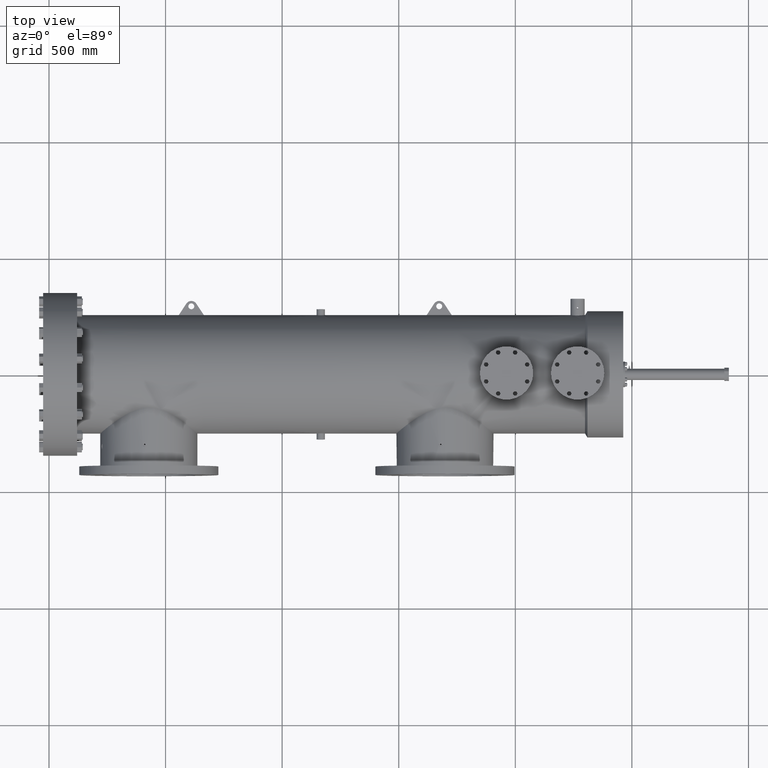
[diagram: clean part render]
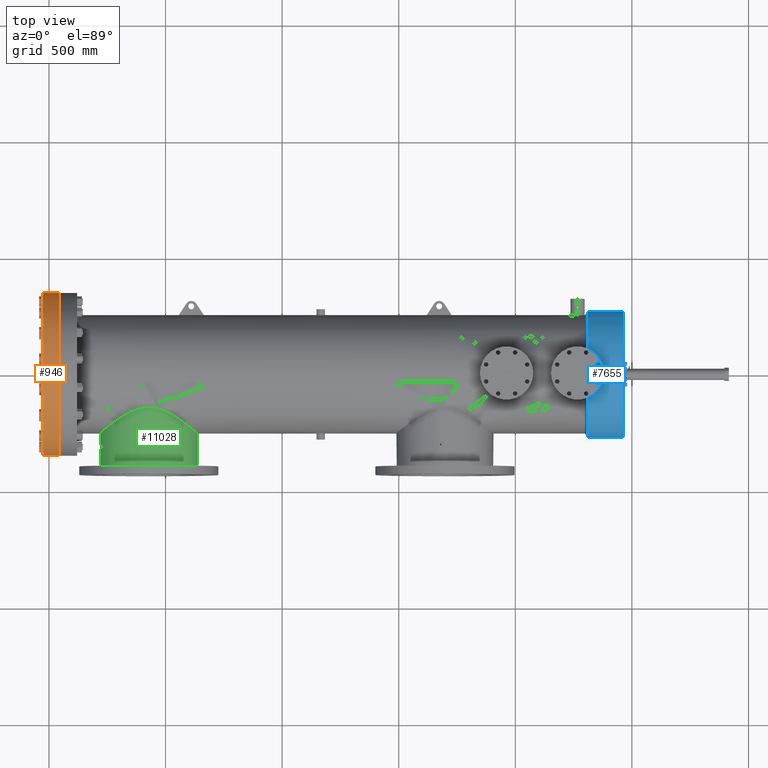
[diagram: same view with three faces highlighted in distinct colors, each labeled with its STEP entity id]
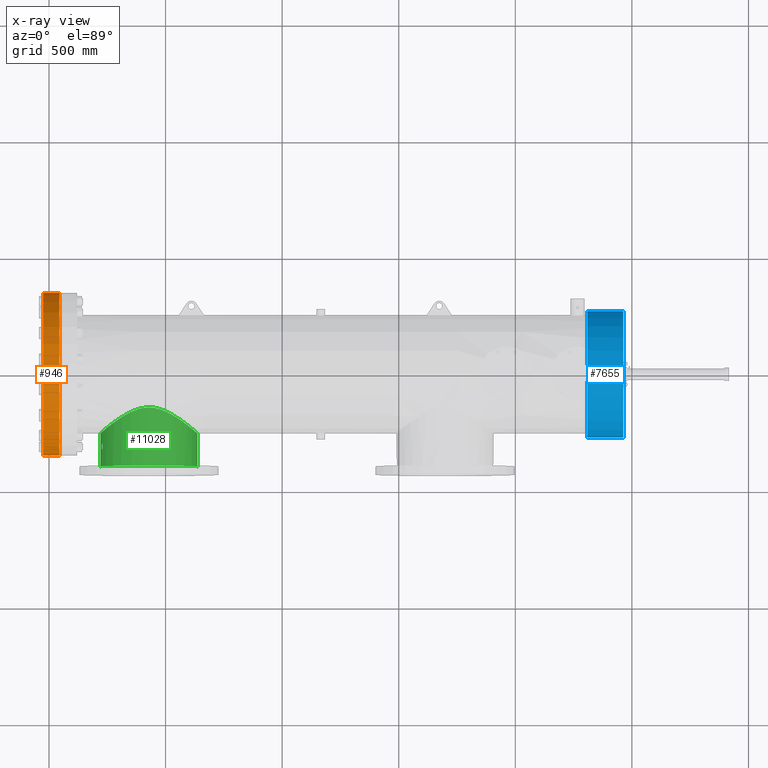
[diagram: x-ray of the same camera — body ghosted, the three highlighted faces saturated]
A machine part, top view with three faces highlighted in distinct colors.
The next image is the same camera in x-ray (body ghosted, the three faces saturated) — at least one of them is partly hidden behind the body in this view.
Their STEP definitions:

[orange] entity #946 — the highlighted cylindrical surface (partial cylindrical patch) has radius 349.227 mm, axis along (-1, -0, -0).
#865 = EDGE_LOOP ( 'NONE', ( #14180, #13440, #8347, #10938 ) ) ;
#946 = ADVANCED_FACE ( 'NONE', ( #8907 ), #1403, .T. ) ;
#1403 = CYLINDRICAL_SURFACE ( 'NONE', #9583, 13.74907756121482194 ) ;
#1550 = DIRECTION ( 'NONE',  ( -1.000000000000000000, -7.582751577510925543E-17, -0.0000000000000000000 ) ) ;
#2478 = CARTESIAN_POINT ( 'NONE',  ( 1.759999999999956044, 1.708298909375056226E-16, 0.0000000000000000000 ) ) ;
#3648 = CARTESIAN_POINT ( 'NONE',  ( -0.9900000000000012124, 13.74907756121482194, 1.683776382657042859E-15 ) ) ;
#4308 = CARTESIAN_POINT ( 'NONE',  ( -0.9899999999999978817, -13.74907756121482194, 0.0000000000000000000 ) ) ;
#4872 = DIRECTION ( 'NONE',  ( 7.947727348256769457E-17, -1.000000000000000000, 0.0000000000000000000 ) ) ;
#5819 = AXIS2_PLACEMENT_3D ( 'NONE', #2478, #22097, #4872 ) ;
#7365 = EDGE_CURVE ( 'NONE', #25760, #18599, #21138, .T. ) ;
#7508 = EDGE_CURVE ( 'NONE', #25760, #13661, #9553, .T. ) ;
#8095 = CIRCLE ( 'NONE', #8597, 13.74907756121482194 ) ;
#8347 = ORIENTED_EDGE ( 'NONE', *, *, #10806, .F. ) ;
#8597 = AXIS2_PLACEMENT_3D ( 'NONE', #12715, #10505, #25919 ) ;
#8907 = FACE_OUTER_BOUND ( 'NONE', #865, .T. ) ;
#9553 = CIRCLE ( 'NONE', #5819, 13.74907756121482194 ) ;
#9583 = AXIS2_PLACEMENT_3D ( 'NONE', #18785, #20999, #25475 ) ;
#10505 = DIRECTION ( 'NONE',  ( -1.000000000000000000, -7.582751577510925543E-17, -0.0000000000000000000 ) ) ;
#10806 = EDGE_CURVE ( 'NONE', #18599, #23794, #8095, .T. ) ;
#10938 = ORIENTED_EDGE ( 'NONE', *, *, #7365, .F. ) ;
#10985 = DIRECTION ( 'NONE',  ( -1.000000000000000000, -7.582751577510925543E-17, -0.0000000000000000000 ) ) ;
#12198 = EDGE_CURVE ( 'NONE', #13661, #23794, #16159, .T. ) ;
#12715 = CARTESIAN_POINT ( 'NONE',  ( -0.9899999999999989919, -3.769577744404142171E-17, 0.0000000000000000000 ) ) ;
#13440 = ORIENTED_EDGE ( 'NONE', *, *, #12198, .T. ) ;
#13661 = VERTEX_POINT ( 'NONE', #26899 ) ;
#14180 = ORIENTED_EDGE ( 'NONE', *, *, #7508, .T. ) ;
#15380 = CARTESIAN_POINT ( 'NONE',  ( -0.9900000000000001021, 13.74907756121482194, 1.683776382657042859E-15 ) ) ;
#16159 = LINE ( 'NONE', #3648, #20258 ) ;
#18599 = VERTEX_POINT ( 'NONE', #4308 ) ;
#18785 = CARTESIAN_POINT ( 'NONE',  ( -0.9900000000000001021, -3.769577744404150182E-17, 0.0000000000000000000 ) ) ;
#20258 = VECTOR ( 'NONE', #1550, 39.37007874015748143 ) ;
#20448 = VECTOR ( 'NONE', #10985, 39.37007874015748143 ) ;
#20999 = DIRECTION ( 'NONE',  ( -1.000000000000000000, -7.582751577510925543E-17, -0.0000000000000000000 ) ) ;
#21138 = LINE ( 'NONE', #24033, #20448 ) ;
#22097 = DIRECTION ( 'NONE',  ( -1.000000000000000000, -7.582751577510925543E-17, -0.0000000000000000000 ) ) ;
#23794 = VERTEX_POINT ( 'NONE', #15380 ) ;
#24033 = CARTESIAN_POINT ( 'NONE',  ( -0.9899999999999989919, -13.74907756121482194, 0.0000000000000000000 ) ) ;
#25475 = DIRECTION ( 'NONE',  ( 7.947727348256769457E-17, -1.000000000000000000, 0.0000000000000000000 ) ) ;
#25760 = VERTEX_POINT ( 'NONE', #26268 ) ;
#25919 = DIRECTION ( 'NONE',  ( 7.947727348256769457E-17, -1.000000000000000000, 0.0000000000000000000 ) ) ;
#26268 = CARTESIAN_POINT ( 'NONE',  ( 1.759999999999957154, -13.74907756121482194, 0.0000000000000000000 ) ) ;
#26899 = CARTESIAN_POINT ( 'NONE',  ( 1.759999999999954934, 13.74907756121482194, 1.683776382657042859E-15 ) ) ;

[blue] entity #7655 — the highlighted cylindrical surface (partial cylindrical patch) has radius 270.83 mm, axis along (-1, -0, -0).
#161 = CARTESIAN_POINT ( 'NONE',  ( 91.43837372207877934, -0.2634669451022431663, 10.65955115852755952 ) ) ;
#249 = CARTESIAN_POINT ( 'NONE',  ( 91.30445933594185703, -0.7970755251154721943, 10.63281910517332562 ) ) ;
#1144 = CARTESIAN_POINT ( 'NONE',  ( -0.9900000000000001021, -3.769577744404150182E-17, 0.0000000000000000000 ) ) ;
#1148 = CARTESIAN_POINT ( 'NONE',  ( 91.40717840809638517, 0.4484694631493227890, 10.65336440469575763 ) ) ;
#1253 = CARTESIAN_POINT ( 'NONE',  ( 91.21535192062201247, 0.9997375391443287240, 10.61622893116865107 ) ) ;
#2220 = CARTESIAN_POINT ( 'NONE',  ( 90.92295328281218758, -1.433414246443352136, 10.56581997584435229 ) ) ;
#2267 = CARTESIAN_POINT ( 'NONE',  ( 90.92295328281218758, 10.66260888168831222, 0.0000000000000000000 ) ) ;
#2279 = ORIENTED_EDGE ( 'NONE', *, *, #2308, .F. ) ;
#2308 = EDGE_CURVE ( 'NONE', #11226, #4697, #4128, .T. ) ;
#2321 = CARTESIAN_POINT ( 'NONE',  ( 91.44930049010753237, -0.1334487444534242506, 10.66182414803340528 ) ) ;
#3330 = CARTESIAN_POINT ( 'NONE',  ( 91.45296737627545269, 0.1281837803315203361, 10.66263797576106143 ) ) ;
#3688 = CARTESIAN_POINT ( 'NONE',  ( 90.92295328281218758, 6.931835137545278971E-15, 0.0000000000000000000 ) ) ;
#4123 = AXIS2_PLACEMENT_3D ( 'NONE', #18322, #5040, #11614 ) ;
#4128 = B_SPLINE_CURVE_WITH_KNOTS ( 'NONE', 3,
 ( #7350, #3330, #27227, #1148, #5558, #18262, #20488, #14392, #5928, #8024, #1253, #23048, #18939, #21064, #7838, #7734 ),
 .UNSPECIFIED., .F., .F.,
 ( 4, 2, 2, 2, 2, 2, 2, 4 ),
 ( 0.03948512586267761276, 0.04935035020679830881, 0.05428296237885853887, 0.05674926846488864696, 0.05921557455091876199, 0.06908079889503879190, 0.07401341106709848072, 0.07894602323915815567 ),
 .UNSPECIFIED. ) ;
#4697 = VERTEX_POINT ( 'NONE', #14870 ) ;
#4767 = FACE_OUTER_BOUND ( 'NONE', #12701, .T. ) ;
#4800 = CARTESIAN_POINT ( 'NONE',  ( 91.08319894960122554, -1.229006418478777896, 10.59213212742513299 ) ) ;
#5040 = DIRECTION ( 'NONE',  ( -1.000000000000000000, -7.582751577510925543E-17, -0.0000000000000000000 ) ) ;
#5229 = DIRECTION ( 'NONE',  ( 0.0000000000000000000, -1.000000000000000000, 0.0000000000000000000 ) ) ;
#5365 = VERTEX_POINT ( 'NONE', #27782 ) ;
#5460 = DIRECTION ( 'NONE',  ( 7.686246463628249630E-17, -1.000000000000000000, 0.0000000000000000000 ) ) ;
#5537 = ORIENTED_EDGE ( 'NONE', *, *, #27246, .T. ) ;
#5558 = CARTESIAN_POINT ( 'NONE',  ( 91.39293013319850445, 0.5118417411875545442, 10.65050348887997522 ) ) ;
#5592 = EDGE_CURVE ( 'NONE', #16816, #26200, #23615, .T. ) ;
#5928 = CARTESIAN_POINT ( 'NONE',  ( 91.32724773097569937, 0.7308310937525499540, 10.63757710475099394 ) ) ;
#6415 = CARTESIAN_POINT ( 'NONE',  ( 96.96049224117986398, 10.66260888168831222, 1.305792983751972072E-15 ) ) ;
#6931 = DIRECTION ( 'NONE',  ( -1.000000000000000000, -7.582751577510925543E-17, -0.0000000000000000000 ) ) ;
#7350 = CARTESIAN_POINT ( 'NONE',  ( 91.45296737627541006, -0.002397684514833890983, 10.66260861210648159 ) ) ;
#7443 = CIRCLE ( 'NONE', #4123, 10.66260888168830512 ) ;
#7655 = ADVANCED_FACE ( 'NONE', ( #4767 ), #18006, .T. ) ;
#7734 = CARTESIAN_POINT ( 'NONE',  ( 90.92295328281218758, 1.428618877413683874, 10.56646943245261916 ) ) ;
#7838 = CARTESIAN_POINT ( 'NONE',  ( 90.96549525578448936, 1.379066337827151267, 10.57316908685749723 ) ) ;
#8024 = CARTESIAN_POINT ( 'NONE',  ( 91.27078165159414880, 0.8831325401994513102, 10.62667522852072466 ) ) ;
#8039 = AXIS2_PLACEMENT_3D ( 'NONE', #26913, #13703, #5229 ) ;
#8820 = CARTESIAN_POINT ( 'NONE',  ( 91.36127848509809724, -0.6439025829977247373, 10.64385791256935399 ) ) ;
#9194 = CARTESIAN_POINT ( 'NONE',  ( 91.21180185958635889, -1.005222052080167572, 10.61528214248030189 ) ) ;
#9534 = CARTESIAN_POINT ( 'NONE',  ( -0.9899999999999993250, -10.66260888168830512, 0.0000000000000000000 ) ) ;
#9647 = AXIS2_PLACEMENT_3D ( 'NONE', #1144, #9912, #5460 ) ;
#9912 = DIRECTION ( 'NONE',  ( -1.000000000000000000, -7.582751577510925543E-17, -0.0000000000000000000 ) ) ;
#10704 = CARTESIAN_POINT ( 'NONE',  ( 90.92295328281218758, -10.66260888168829979, 1.305792983751972467E-15 ) ) ;
#11008 = CARTESIAN_POINT ( 'NONE',  ( 91.29235740826844392, -0.8275892288044995881, 10.63048603230141076 ) ) ;
#11226 = VERTEX_POINT ( 'NONE', #15512 ) ;
#11442 = EDGE_CURVE ( 'NONE', #4697, #14938, #19263, .T. ) ;
#11614 = DIRECTION ( 'NONE',  ( 0.0000000000000000000, -1.000000000000000000, 0.0000000000000000000 ) ) ;
#11728 = AXIS2_PLACEMENT_3D ( 'NONE', #3688, #25314, #25033 ) ;
#11761 = CARTESIAN_POINT ( 'NONE',  ( 91.45223605290914293, -0.06789048517657113313, 10.66244313527659315 ) ) ;
#12438 = VERTEX_POINT ( 'NONE', #6415 ) ;
#12701 = EDGE_LOOP ( 'NONE', ( #25419, #5537, #20795, #2279, #22952, #23767, #16102 ) ) ;
#13323 = CARTESIAN_POINT ( 'NONE',  ( -0.9900000000000008793, 10.66260888168830512, 1.305792983751972072E-15 ) ) ;
#13662 = CARTESIAN_POINT ( 'NONE',  ( 91.45296737627538164, -0.03506309456366516614, 10.66260126668560737 ) ) ;
#13703 = DIRECTION ( 'NONE',  ( -1.000000000000000000, -7.582751577510925543E-17, -0.0000000000000000000 ) ) ;
#13737 = VECTOR ( 'NONE', #6931, 39.37007874015748143 ) ;
#13822 = DIRECTION ( 'NONE',  ( -1.000000000000000000, -7.582751577510925543E-17, -0.0000000000000000000 ) ) ;
#14392 = CARTESIAN_POINT ( 'NONE',  ( 91.33789506381455681, 0.7000411440008792452, 10.63964958237722414 ) ) ;
#14870 = CARTESIAN_POINT ( 'NONE',  ( 90.92295328281218758, 1.428618877413683874, 10.56646943245261916 ) ) ;
#14938 = VERTEX_POINT ( 'NONE', #2267 ) ;
#15170 = EDGE_CURVE ( 'NONE', #5365, #12438, #7443, .T. ) ;
#15379 = CARTESIAN_POINT ( 'NONE',  ( 91.44710435048737907, -0.1660696181446403852, 10.66136498943404476 ) ) ;
#15512 = CARTESIAN_POINT ( 'NONE',  ( 91.45296737627541006, -0.002397684514833890983, 10.66260861210648159 ) ) ;
#15837 = CARTESIAN_POINT ( 'NONE',  ( 91.45296737627541006, -0.002397684514833890983, 10.66260861210648159 ) ) ;
#16102 = ORIENTED_EDGE ( 'NONE', *, *, #27904, .F. ) ;
#16816 = VERTEX_POINT ( 'NONE', #10704 ) ;
#18006 = CYLINDRICAL_SURFACE ( 'NONE', #9647, 10.66260888168830512 ) ;
#18262 = CARTESIAN_POINT ( 'NONE',  ( 91.36720319023122272, 0.6063156470100730111, 10.64540295586555807 ) ) ;
#18322 = CARTESIAN_POINT ( 'NONE',  ( 96.96049224117986398, 7.389646718153739960E-15, 0.0000000000000000000 ) ) ;
#18485 = VECTOR ( 'NONE', #13822, 39.37007874015748143 ) ;
#18939 = CARTESIAN_POINT ( 'NONE',  ( 91.08169232835805929, 1.221403351621418665, 10.59255707689030324 ) ) ;
#19263 = CIRCLE ( 'NONE', #11728, 10.66260888168830512 ) ;
#19668 = CARTESIAN_POINT ( 'NONE',  ( 91.25362689653104553, -0.9173610146336845794, 10.62311354906537453 ) ) ;
#20488 = CARTESIAN_POINT ( 'NONE',  ( 91.35787384377776732, 0.6377885256794716407, 10.64356268528472960 ) ) ;
#20795 = ORIENTED_EDGE ( 'NONE', *, *, #11442, .F. ) ;
#21064 = CARTESIAN_POINT ( 'NONE',  ( 91.00579321602089067, 1.327657726847268682, 10.57976448390386182 ) ) ;
#21735 = EDGE_CURVE ( 'NONE', #26200, #11226, #27126, .T. ) ;
#21852 = CARTESIAN_POINT ( 'NONE',  ( 91.26695392330825030, -0.8876947836730421093, 10.62563575442092656 ) ) ;
#22573 = LINE ( 'NONE', #13323, #13737 ) ;
#22952 = ORIENTED_EDGE ( 'NONE', *, *, #21735, .F. ) ;
#23048 = CARTESIAN_POINT ( 'NONE',  ( 91.11701724058941920, 1.166953890585260112, 10.59870688842185515 ) ) ;
#23615 = CIRCLE ( 'NONE', #8039, 10.66260888168830512 ) ;
#23767 = ORIENTED_EDGE ( 'NONE', *, *, #5592, .F. ) ;
#24058 = CARTESIAN_POINT ( 'NONE',  ( 91.39530808188028743, -0.5188982724933624002, 10.65073841082020500 ) ) ;
#24319 = LINE ( 'NONE', #9534, #18485 ) ;
#24428 = CARTESIAN_POINT ( 'NONE',  ( 91.42970125706148110, -0.3277789917740089320, 10.65776022828787717 ) ) ;
#25033 = DIRECTION ( 'NONE',  ( 0.0000000000000000000, -1.000000000000000000, 0.0000000000000000000 ) ) ;
#25314 = DIRECTION ( 'NONE',  ( -1.000000000000000000, -7.582751577510925543E-17, -0.0000000000000000000 ) ) ;
#25419 = ORIENTED_EDGE ( 'NONE', *, *, #15170, .T. ) ;
#26120 = CARTESIAN_POINT ( 'NONE',  ( 91.00808361212293107, -1.334255140307592402, 10.57927241737038671 ) ) ;
#26200 = VERTEX_POINT ( 'NONE', #26426 ) ;
#26299 = CARTESIAN_POINT ( 'NONE',  ( 91.18146358663945250, -1.062281436895819109, 10.60970825315633981 ) ) ;
#26426 = CARTESIAN_POINT ( 'NONE',  ( 90.92295328281218758, -1.433414246443352136, 10.56581997584435229 ) ) ;
#26913 = CARTESIAN_POINT ( 'NONE',  ( 90.92295328281218758, 6.931835137545278971E-15, 0.0000000000000000000 ) ) ;
#27126 = B_SPLINE_CURVE_WITH_KNOTS ( 'NONE', 3,
 ( #2220, #26120, #4800, #26299, #9194, #19668, #21852, #11008, #249, #8820, #24058, #24428, #161, #15379, #2321, #11761, #13662, #15837 ),
 .UNSPECIFIED., .F., .F.,
 ( 4, 2, 2, 2, 2, 2, 2, 2, 4 ),
 ( 0.0000000000000000000, 0.009871281465669156860, 0.01480692219850374136, 0.01727474256492132071, 0.01974256293133890353, 0.02961384439700831539, 0.03454948512984302306, 0.03701730549626031791, 0.03948512586267761276 ),
 .UNSPECIFIED. ) ;
#27227 = CARTESIAN_POINT ( 'NONE',  ( 91.44141685576489920, 0.2572083095743213921, 10.66026976151988137 ) ) ;
#27246 = EDGE_CURVE ( 'NONE', #12438, #14938, #22573, .T. ) ;
#27782 = CARTESIAN_POINT ( 'NONE',  ( 96.96049224117986398, -10.66260888168829801, 0.0000000000000000000 ) ) ;
#27904 = EDGE_CURVE ( 'NONE', #5365, #16816, #24319, .T. ) ;

[green] entity #11028 — the highlighted cylindrical surface (partial cylindrical patch) has radius 208.2 mm, axis along (-0, 1, -0).
#33 = EDGE_CURVE ( 'NONE', #21390, #23235, #17979, .T. ) ;
#45 = CARTESIAN_POINT ( 'NONE',  ( 24.50116959114270188, -9.545775165054553923, 2.968703976693326752 ) ) ;
#121 = CARTESIAN_POINT ( 'NONE',  ( 15.82786981360354162, -12.07455067620546885, 8.131546690324457316 ) ) ;
#146 = DIRECTION ( 'NONE',  ( -1.000000000000000000, -1.404549096999622008E-16, 0.0000000000000000000 ) ) ;
#317 = CARTESIAN_POINT ( 'NONE',  ( 20.54219809830364341, -6.803237509691964391, 7.324631007274519767 ) ) ;
#385 = CARTESIAN_POINT ( 'NONE',  ( 16.43009473725399516, -12.14419324976564774, 8.185544540790848700 ) ) ;
#401 = CARTESIAN_POINT ( 'NONE',  ( 21.63029562426835284, -7.447410493077187610, 6.670906951783607930 ) ) ;
#535 = CARTESIAN_POINT ( 'NONE',  ( 16.18339879231691114, -11.68158854654132384, 8.168863195924817688 ) ) ;
#637 = CARTESIAN_POINT ( 'NONE',  ( 16.03812964878656544, -11.69639202961358393, 8.155499903430280639 ) ) ;
#735 = CARTESIAN_POINT ( 'NONE',  ( 16.12012749966308078, -11.67954188586604758, 8.163373651599783898 ) ) ;
#822 = CARTESIAN_POINT ( 'NONE',  ( 16.25468776561100981, -11.69991943466190065, 8.174438981238886015 ) ) ;
#937 = DIRECTION ( 'NONE',  ( -1.404549096999621761E-16, 1.000000000000000000, -0.0000000000000000000 ) ) ;
#1527 = CARTESIAN_POINT ( 'NONE',  ( 8.899106359209419281, -12.37202655816460606, 1.950567924509803985 ) ) ;
#1708 = CARTESIAN_POINT ( 'NONE',  ( 8.921619807836961513, -11.95729979497347806, 2.040280317133781995 ) ) ;
#1736 = CARTESIAN_POINT ( 'NONE',  ( 16.13486371211460479, -5.765635073967142255, 8.165894981354263393 ) ) ;
#1760 = ORIENTED_EDGE ( 'NONE', *, *, #18108, .T. ) ;
#1767 = CARTESIAN_POINT ( 'NONE',  ( 8.663641847479075508, -9.995885049502602371, -2.062765671598703860E-23 ) ) ;
#1800 = CARTESIAN_POINT ( 'NONE',  ( 8.963395112458924174, -12.69818739820836484, 2.196545209303030433 ) ) ;
#1826 = CARTESIAN_POINT ( 'NONE',  ( 10.09024029802315248, -8.863759179501926155, 4.621297172371707340 ) ) ;
#1891 = CARTESIAN_POINT ( 'NONE',  ( 8.984568474269828187, -11.78785274782703851, 2.271313744286141745 ) ) ;
#1903 = CARTESIAN_POINT ( 'NONE',  ( 16.05783813475186506, -12.31235558032850541, 8.157463137686830734 ) ) ;
#1917 = CARTESIAN_POINT ( 'NONE',  ( 10.76780905467635563, -8.356993418308858779, 5.489390334615839251 ) ) ;
#1994 = CARTESIAN_POINT ( 'NONE',  ( 15.85233008227351448, -12.14432359751044643, 8.134619353660978547 ) ) ;
#2010 = CARTESIAN_POINT ( 'NONE',  ( 16.60086400655914218, -5.727289428825812045, 8.192817275509336028 ) ) ;
#2107 = CARTESIAN_POINT ( 'NONE',  ( 16.78124529633907969, -5.721626032403639428, 8.196782092495785932 ) ) ;
#2368 = ORIENTED_EDGE ( 'NONE', *, *, #33, .F. ) ;
#2371 = B_SPLINE_CURVE_WITH_KNOTS ( 'NONE', 3,
 ( #16571, #12319, #1891, #17119, #6020, #23236, #14770, #19034, #27970, #4001, #21329, #1708, #16939, #3908, #12499, #8307, #19132, #25439, #21155, #8122, #12408, #25710, #27594, #14584, #27874, #19317, #6122, #1527, #16757, #18938, #6220, #14950, #21422, #23334, #21237, #5927, #8397, #1800, #19223, #23616, #25799, #12775 ),
 .UNSPECIFIED., .F., .F.,
 ( 4, 2, 2, 2, 2, 2, 2, 2, 2, 2, 2, 2, 2, 2, 2, 2, 2, 2, 2, 2, 4 ),
 ( 0.0000000000000000000, 0.002148674630707739230, 0.004297349261415478461, 0.005371686576769304708, 0.006446023892123131822, 0.008594698522830896206, 0.009669035838184826537, 0.01074337315353876034, 0.01289204778424662620, 0.01396638509960055827, 0.01504072241495449380, 0.01718939704566236834, 0.01826373436101638714, 0.01933807167637040247, 0.02148674630707844008, 0.02363542093778647421, 0.02578409556849451528, 0.02793277019920254942, 0.03008144482991058702, 0.03223011946061862115, 0.03437879409132666569 ),
 .UNSPECIFIED. ) ;
#2391 = CARTESIAN_POINT ( 'NONE',  ( 21.21095134889379352, -7.186032020247997920, 6.951656595717765619 ) ) ;
#2425 = EDGE_CURVE ( 'NONE', #4321, #8562, #18628, .T. ) ;
#2477 = CARTESIAN_POINT ( 'NONE',  ( 22.95377105484152125, -8.358543219746817243, 5.484237447133555321 ) ) ;
#2545 = CARTESIAN_POINT ( 'NONE',  ( 16.46331948819042523, -12.02242942216504673, 8.187222372758384381 ) ) ;
#2565 = CARTESIAN_POINT ( 'NONE',  ( 25.05734263488064073, -9.996543997250148195, 0.2850746757894894734 ) ) ;
#2647 = CARTESIAN_POINT ( 'NONE',  ( 16.43467823256388982, -12.13452911229035713, 8.185783730520242329 ) ) ;
#2703 = CARTESIAN_POINT ( 'NONE',  ( 15.84835425128931519, -11.86803616774653491, 8.134122543901881386 ) ) ;
#2898 = CARTESIAN_POINT ( 'NONE',  ( 16.41482280259934257, -11.83115381039899638, 8.184727855000934582 ) ) ;
#3113 = CARTESIAN_POINT ( 'NONE',  ( 9.144701788325876990, -9.605362288188807440, 2.767628990184842319 ) ) ;
#3755 = VECTOR ( 'NONE', #14436, 39.37007874015748143 ) ;
#3816 = CARTESIAN_POINT ( 'NONE',  ( 9.000000000000000000, -6.035059426198157441E-15, 2.324009058300751551 ) ) ;
#3876 = CARTESIAN_POINT ( 'NONE',  ( 8.663641847479075508, -9.995885049502602371, 0.1421040004278951996 ) ) ;
#3908 = CARTESIAN_POINT ( 'NONE',  ( 8.915464471333640617, -11.99199421059678272, 2.016173530557915594 ) ) ;
#3933 = CARTESIAN_POINT ( 'NONE',  ( 18.40285125700670221, -5.925503731079786007, 8.050739404368409069 ) ) ;
#3974 = FACE_OUTER_BOUND ( 'NONE', #12558, .T. ) ;
#4001 = CARTESIAN_POINT ( 'NONE',  ( 8.933465674304446935, -11.90434376845812103, 2.085920284626454624 ) ) ;
#4009 = CARTESIAN_POINT ( 'NONE',  ( 16.16195356394217342, -12.32326370501727908, 8.167058384481892475 ) ) ;
#4028 = CARTESIAN_POINT ( 'NONE',  ( 13.17322598038670556, -6.804038148662318264, 7.325091730890828323 ) ) ;
#4091 = VERTEX_POINT ( 'NONE', #15764 ) ;
#4126 = CARTESIAN_POINT ( 'NONE',  ( 14.82972628725018360, -6.071024341624086773, 7.941380680156688854 ) ) ;
#4222 = CARTESIAN_POINT ( 'NONE',  ( 17.14042384507657601, -5.721186004067416953, 8.197106846227450561 ) ) ;
#4318 = CARTESIAN_POINT ( 'NONE',  ( 9.944661990805485630, -8.975444346235391890, 4.400458574110007959 ) ) ;
#4321 = VERTEX_POINT ( 'NONE', #10238 ) ;
#4401 = CARTESIAN_POINT ( 'NONE',  ( 15.83657686964628653, -12.10501888585960195, 8.132647987797787081 ) ) ;
#4570 = VECTOR ( 'NONE', #18912, 39.37007874015748143 ) ;
#4689 = CARTESIAN_POINT ( 'NONE',  ( 25.05734263488064428, -9.996543997250146418, 1.003805526232174753E-15 ) ) ;
#4696 = DIRECTION ( 'NONE',  ( -1.404549096999621761E-16, 1.000000000000000000, -0.0000000000000000000 ) ) ;
#4781 = CARTESIAN_POINT ( 'NONE',  ( 24.96737178882356645, -9.922898657198851780, 1.213233276448062892 ) ) ;
#4784 = EDGE_CURVE ( 'NONE', #23235, #21390, #5262, .T. ) ;
#4913 = CARTESIAN_POINT ( 'NONE',  ( 16.30240182586242170, -11.72186263128104500, 8.177848116046401827 ) ) ;
#4945 = B_SPLINE_CURVE_WITH_KNOTS ( 'NONE', 3,
 ( #1767, #3876, #19101, #19191, #6184, #17282, #21484, #23588, #25764, #12741, #17090, #23676, #16046, #3113, #8504, #15232, #22638, #7989, #12380, #27810, #21731, #4318, #8697, #17247, #1826, #6425, #8516, #1917, #25823, #28187, #8334, #17056, #10791, #21355, #14794, #17342, #26009, #19251, #14888, #4028, #19539, #6243, #10688, #23935, #23740, #6331, #4126, #23838, #12993, #25911, #15157, #12898, #28084, #1736, #19345, #15069, #27903, #25734, #2010, #21450, #2107, #4222, #21633, #8607, #21539, #6516, #10890, #26097, #16963, #3933, #19155, #8423, #23554, #12707, #23643, #10595, #12798, #27993, #14976, #317, #24221, #11165, #2391, #401, #13445, #15441, #20011, #8896, #13362, #2477, #26459, #15358, #6610, #6880, #22096, #15531, #24308, #6970, #22195, #11070, #45, #24403, #26360, #15264, #17428, #19643, #11259, #4781, #15627, #13177, #26273, #24032, #2565, #4689 ),
 .UNSPECIFIED., .F., .F.,
 ( 4, 2, 2, 2, 2, 2, 2, 2, 2, 2, 2, 2, 2, 2, 2, 2, 2, 2, 2, 2, 2, 2, 2, 2, 2, 2, 2, 2, 2, 2, 2, 2, 2, 2, 2, 2, 2, 2, 2, 2, 2, 2, 2, 2, 2, 2, 2, 2, 2, 2, 2, 2, 2, 2, 2, 2, 4 ),
 ( 0.1792880723523618269, 0.1901018429545053567, 0.1955087282555771078, 0.2009156135566488588, 0.2225431547609358351, 0.2441706959652228393, 0.2495775812662945903, 0.2549844665673663413, 0.2657982371695097878, 0.2874257783737966809, 0.2982395489759401275, 0.3036464342770118785, 0.3090533195780835740, 0.3306808607823705781, 0.3523084019866575822, 0.3739359431909445863, 0.3847497137930881994, 0.3901565990941598949, 0.3955634843952317015, 0.4171910255995190941, 0.4388185668038065423, 0.4604461080080939350, 0.4712598786102376036, 0.4739633212607736179, 0.4766667639113096322, 0.4820736492123817163, 0.5037011904166699416, 0.5145149610188139988, 0.5172184036693500131, 0.5199218463198860274, 0.5253287316209580560, 0.5469562728252455042, 0.5577700434273890062, 0.5604734860779247985, 0.5631769287284607017, 0.5685838140295320642, 0.5902113552338177360, 0.6118388964381031858, 0.6172457817391748813, 0.6226526670402464658, 0.6334664376423897458, 0.6550939788466760838, 0.6767215200509624218, 0.6983490612552487597, 0.7091628318573919287, 0.7199766024595350977, 0.7416041436638214357, 0.7632316848681075516, 0.7848592260723938896, 0.7902661113734654741, 0.7956729966745370586, 0.8064867672766800055, 0.8281143084809663435, 0.8389280790831092904, 0.8443349643841808749, 0.8497418496852522374, 0.8713693908895383533 ),
 .UNSPECIFIED. ) ;
#4983 = FACE_BOUND ( 'NONE', #22365, .T. ) ;
#5017 = CARTESIAN_POINT ( 'NONE',  ( 16.39711868923799543, -11.80470783075160845, 8.183751038299849512 ) ) ;
#5115 = CARTESIAN_POINT ( 'NONE',  ( 15.83626473414197733, -11.89708539863975290, 8.132612148803040952 ) ) ;
#5153 = EDGE_CURVE ( 'NONE', #4091, #13330, #13427, .T. ) ;
#5262 = B_SPLINE_CURVE_WITH_KNOTS ( 'NONE', 3,
 ( #12780, #26077, #15239, #121, #19230, #4401, #27976, #1994, #23626, #25988, #28063, #24010, #19621, #17323, #28168, #21713, #8678, #23722, #6591, #21808, #1903, #8772, #10962, #15336, #4009, #6313, #21520, #10669, #25893, #12877, #15049, #17224, #19419, #26435, #24293, #6860, #13525, #15704, #385, #2647, #15608, #17499, #9053, #2545, #17594 ),
 .UNSPECIFIED., .F., .F.,
 ( 4, 2, 2, 2, 2, 2, 2, 2, 2, 1, 2, 2, 2, 2, 2, 2, 2, 2, 2, 2, 2, 2, 4 ),
 ( 5.551115123125782702E-17, 0.001600728466392453133, 0.002401092699588569870, 0.003201456932784687258, 0.004802185399176836164, 0.005602549632372841662, 0.006402913865568847160, 0.008003642331960741929, 0.008804006565156733549, 0.009604370798352726904, 0.01040473503154872026, 0.01120509926474471188, 0.01280582773113672287, 0.01440655619752873387, 0.01600728466392074487, 0.01680764889711672261, 0.01760801313031270035, 0.01920874159670469747, 0.02080947006309669806, 0.02160983429629263070, 0.02241019852948855987, 0.02401092699588020657, 0.02561165546227184980 ),
 .UNSPECIFIED. ) ;
#5757 = ORIENTED_EDGE ( 'NONE', *, *, #4784, .F. ) ;
#5927 = CARTESIAN_POINT ( 'NONE',  ( 8.944442854469686566, -12.65196123937998962, 2.127199327444046162 ) ) ;
#6020 = CARTESIAN_POINT ( 'NONE',  ( 8.963406663758137327, -11.82142315517658560, 2.196586551003278931 ) ) ;
#6021 = DIRECTION ( 'NONE',  ( 1.404549096999621761E-16, -1.000000000000000000, 0.0000000000000000000 ) ) ;
#6122 = CARTESIAN_POINT ( 'NONE',  ( 8.897361470045160203, -12.33034419604969401, 1.943427565355445807 ) ) ;
#6184 = CARTESIAN_POINT ( 'NONE',  ( 8.683207590507960205, -9.979847247776168828, 0.5705614428369817359 ) ) ;
#6220 = CARTESIAN_POINT ( 'NONE',  ( 8.908426330091533174, -12.47880879059411896, 1.988266066481163330 ) ) ;
#6243 = CARTESIAN_POINT ( 'NONE',  ( 13.87700281201183294, -6.449191641189512936, 7.638953946006890483 ) ) ;
#6313 = CARTESIAN_POINT ( 'NONE',  ( 16.18324972622104596, -12.32120125258543197, 8.168851007570342659 ) ) ;
#6331 = CARTESIAN_POINT ( 'NONE',  ( 14.79656915671343853, -6.082196058072280920, 7.932826884707657733 ) ) ;
#6425 = CARTESIAN_POINT ( 'NONE',  ( 10.27817913463074184, -8.720551855999701729, 4.891931252958052312 ) ) ;
#6516 = CARTESIAN_POINT ( 'NONE',  ( 18.16045988451854143, -5.867346426271772053, 8.093187346993781617 ) ) ;
#6579 = CARTESIAN_POINT ( 'NONE',  ( 25.05734263488064428, -15.56000000000000050, 1.003824659773538701E-15 ) ) ;
#6591 = CARTESIAN_POINT ( 'NONE',  ( 16.01802124416625261, -12.29916769396252008, 8.153458268124035513 ) ) ;
#6610 = CARTESIAN_POINT ( 'NONE',  ( 23.44514928462860226, -8.722944453056461711, 4.888558189365356910 ) ) ;
#6760 = ORIENTED_EDGE ( 'NONE', *, *, #22678, .F. ) ;
#6860 = CARTESIAN_POINT ( 'NONE',  ( 16.39712990298287210, -12.19802037790742943, 8.183751514543576633 ) ) ;
#6880 = CARTESIAN_POINT ( 'NONE',  ( 23.74120943284432528, -8.948550639243096683, 4.462223714582588485 ) ) ;
#6970 = CARTESIAN_POINT ( 'NONE',  ( 24.39672294887731852, -9.462372911710168921, 3.224634570622429752 ) ) ;
#7116 = CARTESIAN_POINT ( 'NONE',  ( 15.82171370076131289, -11.95899625836939251, 8.130763388154518267 ) ) ;
#7300 = CARTESIAN_POINT ( 'NONE',  ( 15.81961870078884758, -11.98007687898778428, 8.130494366865189448 ) ) ;
#7363 = ORIENTED_EDGE ( 'NONE', *, *, #22246, .F. ) ;
#7989 = CARTESIAN_POINT ( 'NONE',  ( 9.456718582904334980, -9.356362095935143230, 3.527971941638605724 ) ) ;
#8122 = CARTESIAN_POINT ( 'NONE',  ( 8.899268823392098682, -12.14738341615028894, 1.951228230391424789 ) ) ;
#8307 = CARTESIAN_POINT ( 'NONE',  ( 8.908456134114857150, -12.04058166317848411, 1.988385256340245100 ) ) ;
#8334 = CARTESIAN_POINT ( 'NONE',  ( 11.49047598136183801, -7.845226104530363287, 6.197995029714336468 ) ) ;
#8397 = CARTESIAN_POINT ( 'NONE',  ( 8.950434625062708704, -12.66862353012966302, 2.149405133210501084 ) ) ;
#8423 = CARTESIAN_POINT ( 'NONE',  ( 18.81016975999604668, -6.039127563833829093, 7.966420589268905061 ) ) ;
#8504 = CARTESIAN_POINT ( 'NONE',  ( 9.168442231778035634, -9.586302060553057558, 2.832930673111299757 ) ) ;
#8516 = CARTESIAN_POINT ( 'NONE',  ( 10.43640058648534819, -8.601583450596036684, 5.097572075896585453 ) ) ;
#8562 = VERTEX_POINT ( 'NONE', #15150 ) ;
#8607 = CARTESIAN_POINT ( 'NONE',  ( 17.84652532077105391, -5.804278249289691161, 8.138555573169957924 ) ) ;
#8678 = CARTESIAN_POINT ( 'NONE',  ( 15.98056553677108482, -12.28032389527053603, 8.149489075211333144 ) ) ;
#8697 = CARTESIAN_POINT ( 'NONE',  ( 9.980407163219339850, -8.947929688953527361, 4.456136868202098533 ) ) ;
#8772 = CARTESIAN_POINT ( 'NONE',  ( 16.06814889272852298, -12.31494839294761157, 8.158471460515317020 ) ) ;
#8860 = ORIENTED_EDGE ( 'NONE', *, *, #11371, .T. ) ;
#8896 = CARTESIAN_POINT ( 'NONE',  ( 22.68863537008011022, -8.167233995954884307, 5.765197967134419343 ) ) ;
#9053 = CARTESIAN_POINT ( 'NONE',  ( 16.46120652432358256, -12.04380479145575933, 8.187120640986019993 ) ) ;
#9124 = CARTESIAN_POINT ( 'NONE',  ( 16.22442065862206206, -11.69022654945933937, 8.172140000266423954 ) ) ;
#9216 = CARTESIAN_POINT ( 'NONE',  ( 16.42030452573864352, -11.84029403715051920, 8.185023881898779052 ) ) ;
#9298 = CARTESIAN_POINT ( 'NONE',  ( 16.33723666495084004, -11.74569713096667734, 8.180136158134329705 ) ) ;
#9397 = CARTESIAN_POINT ( 'NONE',  ( 16.24464593942759549, -11.69633573014122163, 8.173689043186691094 ) ) ;
#10238 = CARTESIAN_POINT ( 'NONE',  ( 9.000000000000000000, -11.77313103179017695, 2.324009058300751551 ) ) ;
#10595 = CARTESIAN_POINT ( 'NONE',  ( 20.12918036514099285, -6.589395779986744195, 7.517201581726028259 ) ) ;
#10669 = CARTESIAN_POINT ( 'NONE',  ( 16.24454337501266110, -12.30700985843548523, 8.173698390205080599 ) ) ;
#10688 = CARTESIAN_POINT ( 'NONE',  ( 14.12154251876075861, -6.338877669252474867, 7.730296433047708859 ) ) ;
#10791 = CARTESIAN_POINT ( 'NONE',  ( 11.88444715629159809, -7.582014323590265725, 6.514862749928277630 ) ) ;
#10890 = CARTESIAN_POINT ( 'NONE',  ( 18.19522133696998267, -5.875149591965027618, 8.087527101683656738 ) ) ;
#10962 = CARTESIAN_POINT ( 'NONE',  ( 16.09920905067954067, -12.32114474232927570, 8.161448216415735146 ) ) ;
#10975 = AXIS2_PLACEMENT_3D ( 'NONE', #13097, #4696, #146 ) ;
#11028 = ADVANCED_FACE ( 'NONE', ( #21349, #4983, #3974 ), #21674, .T. ) ;
#11070 = CARTESIAN_POINT ( 'NONE',  ( 24.47579730860633163, -9.525475941350352471, 3.033194580763155734 ) ) ;
#11165 = CARTESIAN_POINT ( 'NONE',  ( 20.99416907350477857, -7.056348431307000624, 7.082836512985172028 ) ) ;
#11259 = CARTESIAN_POINT ( 'NONE',  ( 24.93390592915512016, -9.895568659718586346, 1.424305523760517334 ) ) ;
#11371 = EDGE_CURVE ( 'NONE', #4091, #14970, #23011, .T. ) ;
#11393 = CARTESIAN_POINT ( 'NONE',  ( 16.02810425913963144, -11.69997468983422095, 8.154482342393855276 ) ) ;
#11496 = CARTESIAN_POINT ( 'NONE',  ( 16.06844871045136713, -11.68775091371748154, 8.158500449731997506 ) ) ;
#11590 = CARTESIAN_POINT ( 'NONE',  ( 15.99891951714213612, -11.71205492888183031, 8.151468052522112373 ) ) ;
#11681 = CARTESIAN_POINT ( 'NONE',  ( 16.38376100986814876, -11.78848917971830268, 8.182988790306735538 ) ) ;
#12190 = CARTESIAN_POINT ( 'NONE',  ( 16.46331948819042523, -12.00138295699645319, 8.187222372758387934 ) ) ;
#12319 = CARTESIAN_POINT ( 'NONE',  ( 8.992092808654028602, -11.77942966787189150, 2.297264577248699702 ) ) ;
#12380 = CARTESIAN_POINT ( 'NONE',  ( 9.576508157185426029, -9.261744614141298015, 3.768685155193265857 ) ) ;
#12408 = CARTESIAN_POINT ( 'NONE',  ( 8.898540367896176306, -12.16118172755025029, 1.948251726697520336 ) ) ;
#12499 = CARTESIAN_POINT ( 'NONE',  ( 8.913608722275132124, -12.00392672405627081, 2.008842493432259957 ) ) ;
#12558 = EDGE_LOOP ( 'NONE', ( #8860, #1760, #6760, #25043 ) ) ;
#12661 = CARTESIAN_POINT ( 'NONE',  ( 8.663641847479073732, -7.186347308069499794E-15, 0.0000000000000000000 ) ) ;
#12707 = CARTESIAN_POINT ( 'NONE',  ( 19.58092152706982958, -6.331213758152771653, 7.736847736478689619 ) ) ;
#12741 = CARTESIAN_POINT ( 'NONE',  ( 8.898827603808831199, -9.803903244648127568, 1.969510906189878563 ) ) ;
#12775 = CARTESIAN_POINT ( 'NONE',  ( 9.000000000000000000, -12.74650097829113982, 2.324009058300751551 ) ) ;
#12780 = CARTESIAN_POINT ( 'NONE',  ( 15.81961870078884758, -12.00138295699644964, 8.130494366865191225 ) ) ;
#12798 = CARTESIAN_POINT ( 'NONE',  ( 20.18903491058501132, -6.619305089049719371, 7.490889644308688311 ) ) ;
#12877 = CARTESIAN_POINT ( 'NONE',  ( 16.28343763527250232, -12.29042341930848714, 8.176518321127529632 ) ) ;
#12898 = CARTESIAN_POINT ( 'NONE',  ( 15.43692959049828417, -5.890144085691042086, 8.077039375334654991 ) ) ;
#12993 = CARTESIAN_POINT ( 'NONE',  ( 14.92992322830255780, -6.038251191394399697, 7.966332371272514479 ) ) ;
#13097 = CARTESIAN_POINT ( 'NONE',  ( 16.86049224117985901, -6.035059426198157441E-15, 0.0000000000000000000 ) ) ;
#13177 = CARTESIAN_POINT ( 'NONE',  ( 24.99639588919939115, -9.946626844197803408, 1.000286250790428433 ) ) ;
#13330 = VERTEX_POINT ( 'NONE', #15093 ) ;
#13362 = CARTESIAN_POINT ( 'NONE',  ( 22.77866207989326952, -8.231755072545023921, 5.672757075505958646 ) ) ;
#13427 = LINE ( 'NONE', #12661, #4570 ) ;
#13445 = CARTESIAN_POINT ( 'NONE',  ( 21.83284552477219620, -7.579122237448316923, 6.521335006683572466 ) ) ;
#13525 = CARTESIAN_POINT ( 'NONE',  ( 16.41466869204471024, -12.17185265493497326, 8.184719422352516816 ) ) ;
#13592 = CARTESIAN_POINT ( 'NONE',  ( 15.89931312989521039, -11.78833799506697844, 8.140314158704315517 ) ) ;
#13873 = CARTESIAN_POINT ( 'NONE',  ( 15.81961870078884758, -12.00138295699644964, 8.130494366865191225 ) ) ;
#14436 = DIRECTION ( 'NONE',  ( -1.404549096999621761E-16, 1.000000000000000000, -0.0000000000000000000 ) ) ;
#14584 = CARTESIAN_POINT ( 'NONE',  ( 8.896190132609655521, -12.27376024469323568, 1.938620205254546258 ) ) ;
#14770 = CARTESIAN_POINT ( 'NONE',  ( 8.950563424974413707, -11.85146264344666100, 2.149770710955253072 ) ) ;
#14794 = CARTESIAN_POINT ( 'NONE',  ( 12.08902860588735884, -7.449655439016814817, 6.665249118875451018 ) ) ;
#14888 = CARTESIAN_POINT ( 'NONE',  ( 12.72666472933966908, -7.056002671304771212, 7.082681091670152362 ) ) ;
#14950 = CARTESIAN_POINT ( 'NONE',  ( 8.915296558342074462, -12.52774164333983542, 2.015544533576313579 ) ) ;
#14970 = VERTEX_POINT ( 'NONE', #6579 ) ;
#14976 = CARTESIAN_POINT ( 'NONE',  ( 20.36701669122009761, -6.710590427361918131, 7.409240711205248076 ) ) ;
#15049 = CARTESIAN_POINT ( 'NONE',  ( 16.30210069902360814, -12.28048319535251665, 8.177814057532819092 ) ) ;
#15069 = CARTESIAN_POINT ( 'NONE',  ( 16.45647421257428888, -5.735640587545343116, 8.186966377377236981 ) ) ;
#15093 = CARTESIAN_POINT ( 'NONE',  ( 8.663641847479075508, -9.995885049502602371, -2.062765671598703860E-23 ) ) ;
#15150 = CARTESIAN_POINT ( 'NONE',  ( 9.000000000000000000, -12.74650097829113982, 2.324009058300751551 ) ) ;
#15157 = CARTESIAN_POINT ( 'NONE',  ( 15.09813705479049339, -5.986335013494772817, 8.005451691245770718 ) ) ;
#15232 = CARTESIAN_POINT ( 'NONE',  ( 9.241709469892477102, -9.527582254517044547, 3.026813198228512469 ) ) ;
#15239 = CARTESIAN_POINT ( 'NONE',  ( 15.82171434185384662, -12.04364365761611566, 8.130763430648737966 ) ) ;
#15264 = CARTESIAN_POINT ( 'NONE',  ( 24.74829078350972367, -9.744594383358831990, 2.246815266544022194 ) ) ;
#15336 = CARTESIAN_POINT ( 'NONE',  ( 16.12004162925159889, -12.32320230565136931, 8.163365227063412277 ) ) ;
#15358 = CARTESIAN_POINT ( 'NONE',  ( 23.28809692559320865, -8.604805187297921876, 5.093176944805319017 ) ) ;
#15441 = CARTESIAN_POINT ( 'NONE',  ( 22.22479448127003465, -7.841865225366476899, 6.202932284267795637 ) ) ;
#15531 = CARTESIAN_POINT ( 'NONE',  ( 24.13934519674676693, -9.258344602584690719, 3.778467181442601408 ) ) ;
#15608 = CARTESIAN_POINT ( 'NONE',  ( 16.44683932018387651, -12.10522893314652215, 8.186410296457616198 ) ) ;
#15627 = CARTESIAN_POINT ( 'NONE',  ( 24.97764598403530201, -9.931295344772930633, 1.142504209281383298 ) ) ;
#15672 = CARTESIAN_POINT ( 'NONE',  ( 16.43024946712435508, -11.85888827569957193, 8.185552658645091739 ) ) ;
#15704 = CARTESIAN_POINT ( 'NONE',  ( 16.42009609206550991, -12.16283430447863090, 8.185012686153983807 ) ) ;
#15762 = CARTESIAN_POINT ( 'NONE',  ( 15.86833240367424125, -11.83080873800612842, 8.136584687435627572 ) ) ;
#15764 = CARTESIAN_POINT ( 'NONE',  ( 8.663641847479077285, -15.56000000000000583, 0.0000000000000000000 ) ) ;
#15886 = DIRECTION ( 'NONE',  ( -1.000000000000000000, -2.666241653758782892E-16, 0.0000000000000000000 ) ) ;
#15959 = CARTESIAN_POINT ( 'NONE',  ( 16.46127589170884065, -11.95942492987952832, 8.187124024737981287 ) ) ;
#16046 = CARTESIAN_POINT ( 'NONE',  ( 9.098854410080551958, -9.642227302567880187, 2.636317643705377023 ) ) ;
#16571 = CARTESIAN_POINT ( 'NONE',  ( 9.000000000000000000, -11.77313103179017695, 2.324009058300751551 ) ) ;
#16757 = CARTESIAN_POINT ( 'NONE',  ( 8.900840503496128875, -12.39935214612006043, 1.957650591288697228 ) ) ;
#16939 = CARTESIAN_POINT ( 'NONE',  ( 8.919464143186074168, -11.96870767889823917, 2.031869758577826701 ) ) ;
#16963 = CARTESIAN_POINT ( 'NONE',  ( 18.29935172872185234, -5.899686867359140052, 8.069651152951596629 ) ) ;
#17056 = CARTESIAN_POINT ( 'NONE',  ( 11.78447632791436384, -7.648040477788812019, 6.437265256735842378 ) ) ;
#17090 = CARTESIAN_POINT ( 'NONE',  ( 8.970502307765356065, -9.745718188912702473, 2.239162551934858136 ) ) ;
#17119 = CARTESIAN_POINT ( 'NONE',  ( 8.970225345940512796, -11.80884991630766301, 2.220974927605333438 ) ) ;
#17224 = CARTESIAN_POINT ( 'NONE',  ( 16.31112946979314415, -12.27508555632747722, 8.178424879925167090 ) ) ;
#17247 = CARTESIAN_POINT ( 'NONE',  ( 10.05317389956377028, -8.892104166971462220, 4.566524221333144062 ) ) ;
#17282 = CARTESIAN_POINT ( 'NONE',  ( 8.694472964054117625, -9.970619174242340677, 0.7139004018609943492 ) ) ;
#17323 = CARTESIAN_POINT ( 'NONE',  ( 15.92889980322288146, -12.24395581810257205, 8.143753129284991843 ) ) ;
#17342 = CARTESIAN_POINT ( 'NONE',  ( 12.19315456917947138, -7.383402031285363876, 6.738573298192632954 ) ) ;
#17428 = CARTESIAN_POINT ( 'NONE',  ( 24.82035890845664383, -9.803094860443277270, 1.976929980226655559 ) ) ;
#17499 = CARTESIAN_POINT ( 'NONE',  ( 16.45294683438302741, -12.08512812776235990, 8.186713639498057304 ) ) ;
#17594 = CARTESIAN_POINT ( 'NONE',  ( 16.46331948819042523, -12.00138295699645319, 8.187222372758387934 ) ) ;
#17830 = CARTESIAN_POINT ( 'NONE',  ( 15.92901367197269380, -11.75870959538595883, 8.143766177971937026 ) ) ;
#17979 = B_SPLINE_CURVE_WITH_KNOTS ( 'NONE', 3,
 ( #18025, #20339, #15959, #22432, #26500, #26691, #22146, #15672, #9216, #2898, #5017, #11681, #24450, #26597, #9298, #22524, #4913, #20243, #822, #9397, #9124, #24544, #535, #24721, #735, #24641, #11496, #22331, #637, #11393, #11590, #26800, #19962, #17830, #13592, #24352, #15762, #26890, #18116, #2703, #5115, #20154, #7116, #7300, #13873 ),
 .UNSPECIFIED., .F., .F.,
 ( 4, 2, 2, 1, 2, 2, 2, 2, 2, 2, 2, 2, 2, 2, 2, 2, 2, 2, 2, 2, 2, 2, 4 ),
 ( 0.02561165546227184980, 0.02721204172988251138, 0.02801223486368776411, 0.02881242799749301337, 0.02961262113129826609, 0.03041281426510351535, 0.03201320053271387855, 0.03281339366651900291, 0.03361358680032412727, 0.03521397306793423027, 0.03601416620173925054, 0.03681435933554427775, 0.03841474560315432524, 0.04001513187076437272, 0.04081532500456940687, 0.04161551813837442715, 0.04321590440598448157, 0.04481629067359452212, 0.04641667694120457655, 0.04721687007500961764, 0.04801706320881466566, 0.04961744947642482417, 0.05121783574403497574 ),
 .UNSPECIFIED. ) ;
#18020 = EDGE_LOOP ( 'NONE', ( #5757, #2368 ) ) ;
#18025 = CARTESIAN_POINT ( 'NONE',  ( 16.46331948819042523, -12.00138295699645319, 8.187222372758387934 ) ) ;
#18108 = EDGE_CURVE ( 'NONE', #14970, #26943, #18366, .T. ) ;
#18116 = CARTESIAN_POINT ( 'NONE',  ( 15.85285808658880136, -11.85854517146142406, 8.134682232645081612 ) ) ;
#18366 = LINE ( 'NONE', #27837, #3755 ) ;
#18628 = LINE ( 'NONE', #3816, #20699 ) ;
#18912 = DIRECTION ( 'NONE',  ( -1.404549096999621761E-16, 1.000000000000000000, -0.0000000000000000000 ) ) ;
#18938 = CARTESIAN_POINT ( 'NONE',  ( 8.905524735930638869, -12.45304862616806041, 1.976599001622131757 ) ) ;
#19034 = CARTESIAN_POINT ( 'NONE',  ( 8.944576867660630981, -11.86806902118622808, 2.127621156691252846 ) ) ;
#19101 = CARTESIAN_POINT ( 'NONE',  ( 8.667334462780306836, -9.992856478767684791, 0.2846130023612495896 ) ) ;
#19132 = CARTESIAN_POINT ( 'NONE',  ( 8.905570614714585886, -12.06615514603710437, 1.976783639530004910 ) ) ;
#19155 = CARTESIAN_POINT ( 'NONE',  ( 18.47122618953618201, -5.943692090719204124, 8.037330960294728044 ) ) ;
#19191 = CARTESIAN_POINT ( 'NONE',  ( 8.678531641890605997, -9.983679090747415330, 0.4989967634447780576 ) ) ;
#19223 = CARTESIAN_POINT ( 'NONE',  ( 8.970217460272596810, -12.71076930340898237, 2.220947033398935844 ) ) ;
#19230 = CARTESIAN_POINT ( 'NONE',  ( 15.83042739566043977, -12.08476602548582690, 8.131871395657899626 ) ) ;
#19251 = CARTESIAN_POINT ( 'NONE',  ( 12.50972271429726668, -7.185705352610370689, 6.951533659623748029 ) ) ;
#19317 = CARTESIAN_POINT ( 'NONE',  ( 8.896923563961109949, -12.31633376889434750, 1.941631229367769551 ) ) ;
#19345 = CARTESIAN_POINT ( 'NONE',  ( 16.27696574013949160, -5.749389598298646931, 8.177318367276166455 ) ) ;
#19419 = CARTESIAN_POINT ( 'NONE',  ( 16.33732777656515722, -12.25763941485522146, 8.180156581477220357 ) ) ;
#19539 = CARTESIAN_POINT ( 'NONE',  ( 13.40283424388924516, -6.681757361688273278, 7.436358499759398555 ) ) ;
#19621 = CARTESIAN_POINT ( 'NONE',  ( 15.90664363064841957, -12.22173400103637242, 8.141166070411610889 ) ) ;
#19643 = CARTESIAN_POINT ( 'NONE',  ( 24.90807319712760659, -9.874496767027046928, 1.563534590882926567 ) ) ;
#19962 = CARTESIAN_POINT ( 'NONE',  ( 15.94556812336850449, -11.74515991344742183, 8.145647826021617632 ) ) ;
#20011 = CARTESIAN_POINT ( 'NONE',  ( 22.41418880943892944, -7.972908150464353305, 6.034105155063287818 ) ) ;
#20154 = CARTESIAN_POINT ( 'NONE',  ( 15.83007327976016398, -11.91728307228888006, 8.131827032969576763 ) ) ;
#20243 = CARTESIAN_POINT ( 'NONE',  ( 16.28390347199819033, -11.71199686285391550, 8.176569154821825336 ) ) ;
#20339 = CARTESIAN_POINT ( 'NONE',  ( 16.46331948819042879, -11.98034099107610295, 8.187222372758387934 ) ) ;
#20699 = VECTOR ( 'NONE', #6021, 39.37007874015748143 ) ;
#21155 = CARTESIAN_POINT ( 'NONE',  ( 8.901023785142264444, -12.11997148428470616, 1.958374788530326427 ) ) ;
#21237 = CARTESIAN_POINT ( 'NONE',  ( 8.933437275524882537, -12.61518476039121595, 2.085812657694265493 ) ) ;
#21329 = CARTESIAN_POINT ( 'NONE',  ( 8.928448485943805579, -11.92443327660392605, 2.066729270220001524 ) ) ;
#21349 = FACE_BOUND ( 'NONE', #18020, .T. ) ;
#21355 = CARTESIAN_POINT ( 'NONE',  ( 12.03749626231640590, -7.482770517311813308, 6.628053440091774995 ) ) ;
#21390 = VERTEX_POINT ( 'NONE', #12190 ) ;
#21422 = CARTESIAN_POINT ( 'NONE',  ( 8.919274616145262513, -12.55101163551690036, 2.031194914099719639 ) ) ;
#21450 = CARTESIAN_POINT ( 'NONE',  ( 16.70921272664857327, -5.723067598292188585, 8.195772831083768750 ) ) ;
#21484 = CARTESIAN_POINT ( 'NONE',  ( 8.701048034616446714, -9.965234714948856265, 0.7854570252545809428 ) ) ;
#21520 = CARTESIAN_POINT ( 'NONE',  ( 16.22448494370899752, -12.31305222426498247, 8.172164886094416048 ) ) ;
#21539 = CARTESIAN_POINT ( 'NONE',  ( 17.98643634447928719, -5.829762047103711708, 8.120373214442734522 ) ) ;
#21633 = CARTESIAN_POINT ( 'NONE',  ( 17.42461160543246024, -5.742578537378912884, 8.182303613239534812 ) ) ;
#21674 = CYLINDRICAL_SURFACE ( 'NONE', #10975, 8.196850393700783499 ) ;
#21713 = CARTESIAN_POINT ( 'NONE',  ( 15.97145398264551197, -12.27486832879720247, 8.148499587200470629 ) ) ;
#21731 = CARTESIAN_POINT ( 'NONE',  ( 9.839346187463233306, -9.056754777213287255, 4.231951538007913349 ) ) ;
#21808 = CARTESIAN_POINT ( 'NONE',  ( 16.03773071610240919, -12.30623777283223141, 8.155459639415637341 ) ) ;
#21927 = AXIS2_PLACEMENT_3D ( 'NONE', #22550, #937, #15886 ) ;
#22096 = CARTESIAN_POINT ( 'NONE',  ( 23.88021895400783023, -9.056025580495411731, 4.240513113670704826 ) ) ;
#22146 = CARTESIAN_POINT ( 'NONE',  ( 16.43923814464709210, -11.87788625299440426, 8.186021592750483578 ) ) ;
#22195 = CARTESIAN_POINT ( 'NONE',  ( 24.42352587031582090, -9.483736410726656629, 3.161275527267597862 ) ) ;
#22246 = EDGE_CURVE ( 'NONE', #4321, #8562, #2371, .T. ) ;
#22331 = CARTESIAN_POINT ( 'NONE',  ( 16.05828153371954414, -11.69029078969357194, 8.157506781428693898 ) ) ;
#22365 = EDGE_LOOP ( 'NONE', ( #7363, #25957 ) ) ;
#22432 = CARTESIAN_POINT ( 'NONE',  ( 16.45507815458793033, -11.92824384116187098, 8.186818678428087637 ) ) ;
#22524 = CARTESIAN_POINT ( 'NONE',  ( 16.32868407893361606, -11.73937332802750610, 8.179585169267509670 ) ) ;
#22550 = CARTESIAN_POINT ( 'NONE',  ( 16.86049224117986256, -15.56000000000000405, 0.0000000000000000000 ) ) ;
#22638 = CARTESIAN_POINT ( 'NONE',  ( 9.293409689982560451, -9.486280517623294273, 3.153750393878822500 ) ) ;
#22678 = EDGE_CURVE ( 'NONE', #13330, #26943, #4945, .T. ) ;
#23011 = CIRCLE ( 'NONE', #21927, 8.196850393700783499 ) ;
#23235 = VERTEX_POINT ( 'NONE', #23908 ) ;
#23236 = CARTESIAN_POINT ( 'NONE',  ( 8.953692743301381540, -11.84357402440086027, 2.161255944162042475 ) ) ;
#23334 = CARTESIAN_POINT ( 'NONE',  ( 8.928407846620981303, -12.59503588156117715, 2.066573808219825281 ) ) ;
#23554 = CARTESIAN_POINT ( 'NONE',  ( 19.07200642982413541, -6.129756780705990060, 7.897389023620922544 ) ) ;
#23588 = CARTESIAN_POINT ( 'NONE',  ( 8.738421871048801748, -9.934644114545564619, 1.141134185202160367 ) ) ;
#23616 = CARTESIAN_POINT ( 'NONE',  ( 8.984566086867555867, -12.73177701279114693, 2.271305583844703158 ) ) ;
#23626 = CARTESIAN_POINT ( 'NONE',  ( 15.86223604359758532, -12.16281191902894321, 8.135845362997599750 ) ) ;
#23643 = CARTESIAN_POINT ( 'NONE',  ( 19.82798560605840876, -6.442063537809867846, 7.645319105908627400 ) ) ;
#23676 = CARTESIAN_POINT ( 'NONE',  ( 9.076765927963142744, -9.660017129868142760, 2.570369752451275414 ) ) ;
#23722 = CARTESIAN_POINT ( 'NONE',  ( 15.99909507141636666, -12.29022138845190426, 8.151468463291994482 ) ) ;
#23740 = CARTESIAN_POINT ( 'NONE',  ( 14.63162254751031632, -6.138946644075963910, 7.889177925442862005 ) ) ;
#23838 = CARTESIAN_POINT ( 'NONE',  ( 14.89638827562629864, -6.049056468041182022, 7.958129998894379220 ) ) ;
#23908 = CARTESIAN_POINT ( 'NONE',  ( 15.81961870078884758, -12.00138295699644964, 8.130494366865191225 ) ) ;
#23935 = CARTESIAN_POINT ( 'NONE',  ( 14.50234382460110538, -6.187193358474261551, 7.851447984869040830 ) ) ;
#24010 = CARTESIAN_POINT ( 'NONE',  ( 15.89956533985342979, -12.21394466241105192, 8.140333025222485475 ) ) ;
#24032 = CARTESIAN_POINT ( 'NONE',  ( 25.04251342583913953, -9.984372549911235240, 0.5707611498719979970 ) ) ;
#24221 = CARTESIAN_POINT ( 'NONE',  ( 20.65673075693194249, -6.865988687539551272, 7.265900131435810039 ) ) ;
#24293 = CARTESIAN_POINT ( 'NONE',  ( 16.38374812204157038, -12.21431720950481647, 8.182988402618704527 ) ) ;
#24308 = CARTESIAN_POINT ( 'NONE',  ( 24.25946968328138098, -9.353199078898546404, 3.538142091509348663 ) ) ;
#24352 = CARTESIAN_POINT ( 'NONE',  ( 15.88598746780801818, -11.80449980670916688, 8.138724555630430402 ) ) ;
#24403 = CARTESIAN_POINT ( 'NONE',  ( 24.57478334625279359, -9.604768257509739726, 2.774393318535504527 ) ) ;
#24450 = CARTESIAN_POINT ( 'NONE',  ( 16.36146016253293212, -11.76621924786901552, 8.181648905893860402 ) ) ;
#24544 = CARTESIAN_POINT ( 'NONE',  ( 16.21422546882583404, -11.68768898499982001, 8.171340275899828143 ) ) ;
#24641 = CARTESIAN_POINT ( 'NONE',  ( 16.09921888060525674, -11.68163300488319400, 8.161448640512638519 ) ) ;
#24721 = CARTESIAN_POINT ( 'NONE',  ( 16.16252857155608069, -11.67952330254782112, 8.167108181112828547 ) ) ;
#24871 = CARTESIAN_POINT ( 'NONE',  ( 25.05734263488064428, -9.996543997250146418, 1.003805526232174753E-15 ) ) ;
#25043 = ORIENTED_EDGE ( 'NONE', *, *, #5153, .F. ) ;
#25439 = CARTESIAN_POINT ( 'NONE',  ( 8.902056781370088601, -12.10628994772646294, 1.962571075084048156 ) ) ;
#25710 = CARTESIAN_POINT ( 'NONE',  ( 8.896789177906324397, -12.20284933778775560, 1.941085799786168797 ) ) ;
#25734 = CARTESIAN_POINT ( 'NONE',  ( 16.56465293812696160, -5.729042969046060918, 8.191589602664365088 ) ) ;
#25764 = CARTESIAN_POINT ( 'NONE',  ( 8.782790254314312151, -9.898363055401942390, 1.420495554006997896 ) ) ;
#25799 = CARTESIAN_POINT ( 'NONE',  ( 8.992092260979323015, -12.74020190594785618, 2.297262724849378213 ) ) ;
#25823 = CARTESIAN_POINT ( 'NONE',  ( 10.94099826541715714, -8.231362477225683705, 5.675559096762675004 ) ) ;
#25893 = CARTESIAN_POINT ( 'NONE',  ( 16.27378300283023904, -12.29496738122701771, 8.175831709808687009 ) ) ;
#25911 = CARTESIAN_POINT ( 'NONE',  ( 15.03067836762355114, -6.006549063909740305, 7.990300664572539624 ) ) ;
#25957 = ORIENTED_EDGE ( 'NONE', *, *, #2425, .T. ) ;
#25988 = CARTESIAN_POINT ( 'NONE',  ( 15.87978147892997072, -12.18904741934894531, 8.137972566001746344 ) ) ;
#26009 = CARTESIAN_POINT ( 'NONE',  ( 12.24564827151095869, -7.350327846043837710, 6.774630079925911375 ) ) ;
#26077 = CARTESIAN_POINT ( 'NONE',  ( 15.81961870078884580, -12.02269359072650445, 8.130494366865191225 ) ) ;
#26097 = CARTESIAN_POINT ( 'NONE',  ( 18.26465883297480985, -5.891317389732112275, 8.075760803918306863 ) ) ;
#26273 = CARTESIAN_POINT ( 'NONE',  ( 25.00488516356501734, -9.953572762576404998, 0.9286551909867573062 ) ) ;
#26360 = CARTESIAN_POINT ( 'NONE',  ( 24.62061290514160561, -9.641629734640122962, 2.643516736258284539 ) ) ;
#26435 = CARTESIAN_POINT ( 'NONE',  ( 16.35361801578664398, -12.24434994709043245, 8.181177340221715610 ) ) ;
#26459 = CARTESIAN_POINT ( 'NONE',  ( 23.03904151867008920, -8.420941092955368745, 5.387989833946115859 ) ) ;
#26500 = CARTESIAN_POINT ( 'NONE',  ( 16.45247819261925670, -11.91788173082596636, 8.186689829340737745 ) ) ;
#26597 = CARTESIAN_POINT ( 'NONE',  ( 16.35364643127466877, -11.75914142250737449, 8.181169310596922983 ) ) ;
#26691 = CARTESIAN_POINT ( 'NONE',  ( 16.44633810288365794, -11.89768145453761505, 8.186381506831086341 ) ) ;
#26800 = CARTESIAN_POINT ( 'NONE',  ( 15.98047225825942697, -11.72190584298603078, 8.149492590130030578 ) ) ;
#26890 = CARTESIAN_POINT ( 'NONE',  ( 15.86283030023668594, -11.83995381094362465, 8.135911274541006932 ) ) ;
#26943 = VERTEX_POINT ( 'NONE', #24871 ) ;
#27594 = CARTESIAN_POINT ( 'NONE',  ( 8.896196644755477223, -12.23098927467139596, 1.938646958531869968 ) ) ;
#27810 = CARTESIAN_POINT ( 'NONE',  ( 9.771693675796550238, -9.109317513619508588, 4.117651656668960491 ) ) ;
#27837 = CARTESIAN_POINT ( 'NONE',  ( 25.05734263488064428, -4.883771544326814300E-15, 1.003824659773538701E-15 ) ) ;
#27874 = CARTESIAN_POINT ( 'NONE',  ( 8.896337753056004161, -12.28807626974932532, 1.939226958592633165 ) ) ;
#27903 = CARTESIAN_POINT ( 'NONE',  ( 16.49246996388988151, -5.733218540960963949, 8.188664159380822483 ) ) ;
#27970 = CARTESIAN_POINT ( 'NONE',  ( 8.941708948273499047, -11.87681076679413295, 2.116918007142162494 ) ) ;
#27976 = CARTESIAN_POINT ( 'NONE',  ( 15.84018403715462853, -12.11507737174326493, 8.133101757216305572 ) ) ;
#27993 = CARTESIAN_POINT ( 'NONE',  ( 20.30800543279877601, -6.679928620291031294, 7.436886227372005109 ) ) ;
#28063 = CARTESIAN_POINT ( 'NONE',  ( 15.88611098588387627, -12.19757709932783030, 8.138733528046516952 ) ) ;
#28084 = CARTESIAN_POINT ( 'NONE',  ( 15.71275205418755228, -5.828800612865806308, 8.121030339053366021 ) ) ;
#28168 = CARTESIAN_POINT ( 'NONE',  ( 15.94508926060354881, -12.25725300300472931, 8.145594296550132896 ) ) ;
#28187 = CARTESIAN_POINT ( 'NONE',  ( 11.30233337921843528, -7.975483659260026670, 6.029863187099367750 ) ) ;